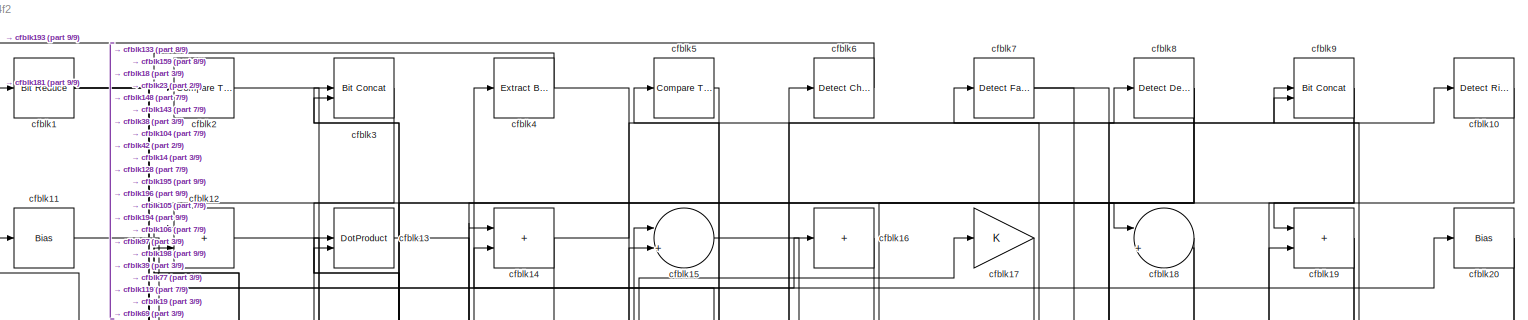
[diagram: root canvas - part 1/9, full width, top band]
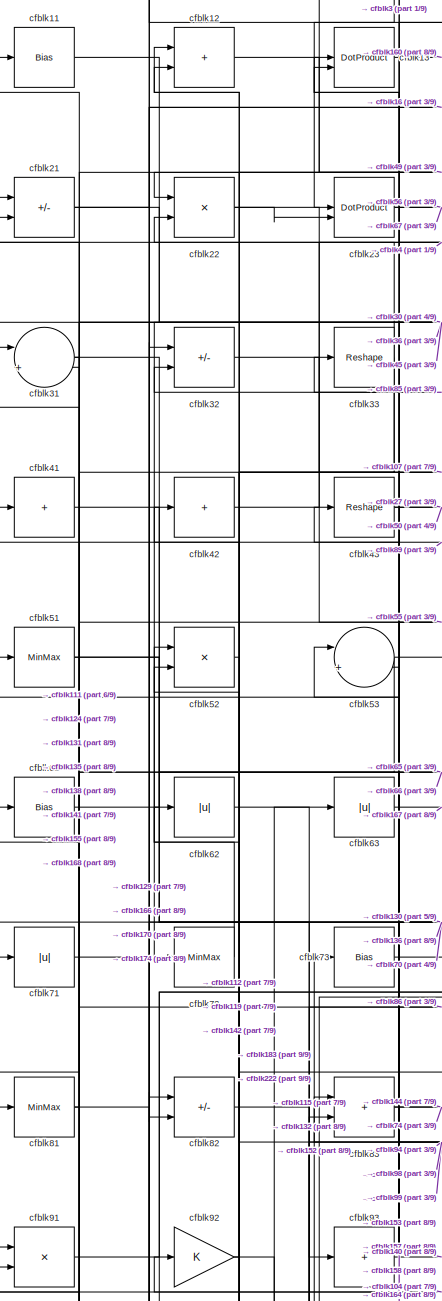
[diagram: root canvas - part 2/9, top left region]
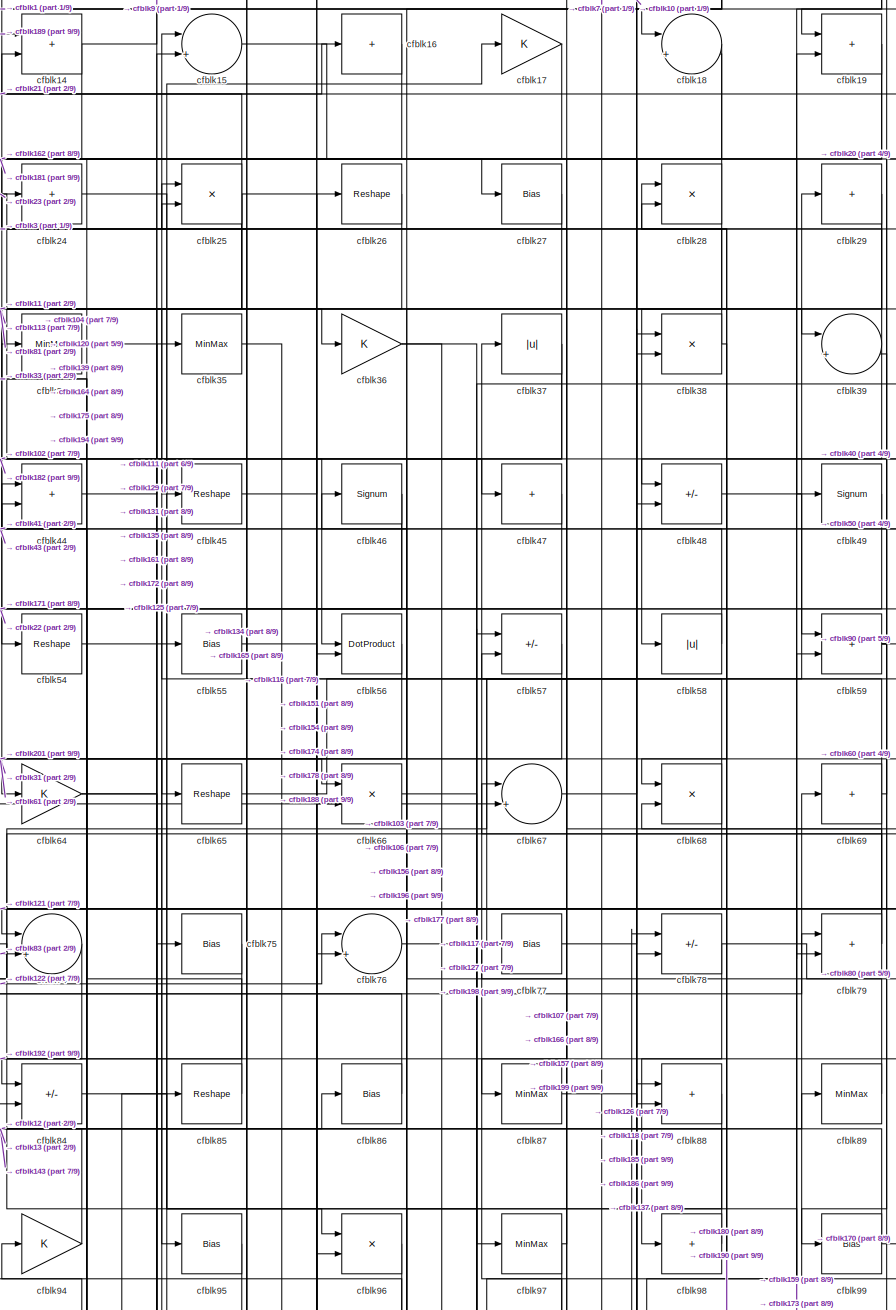
[diagram: root canvas - part 3/9, top center region]
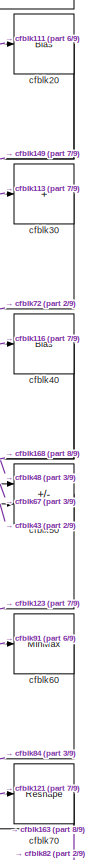
[diagram: root canvas - part 4/9, top right region]
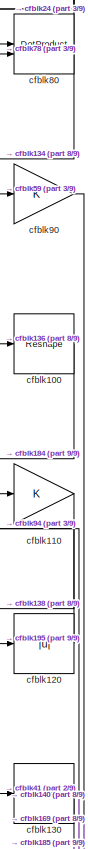
[diagram: root canvas - part 5/9, middle right region]
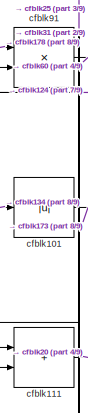
[diagram: root canvas - part 6/9, middle left region]
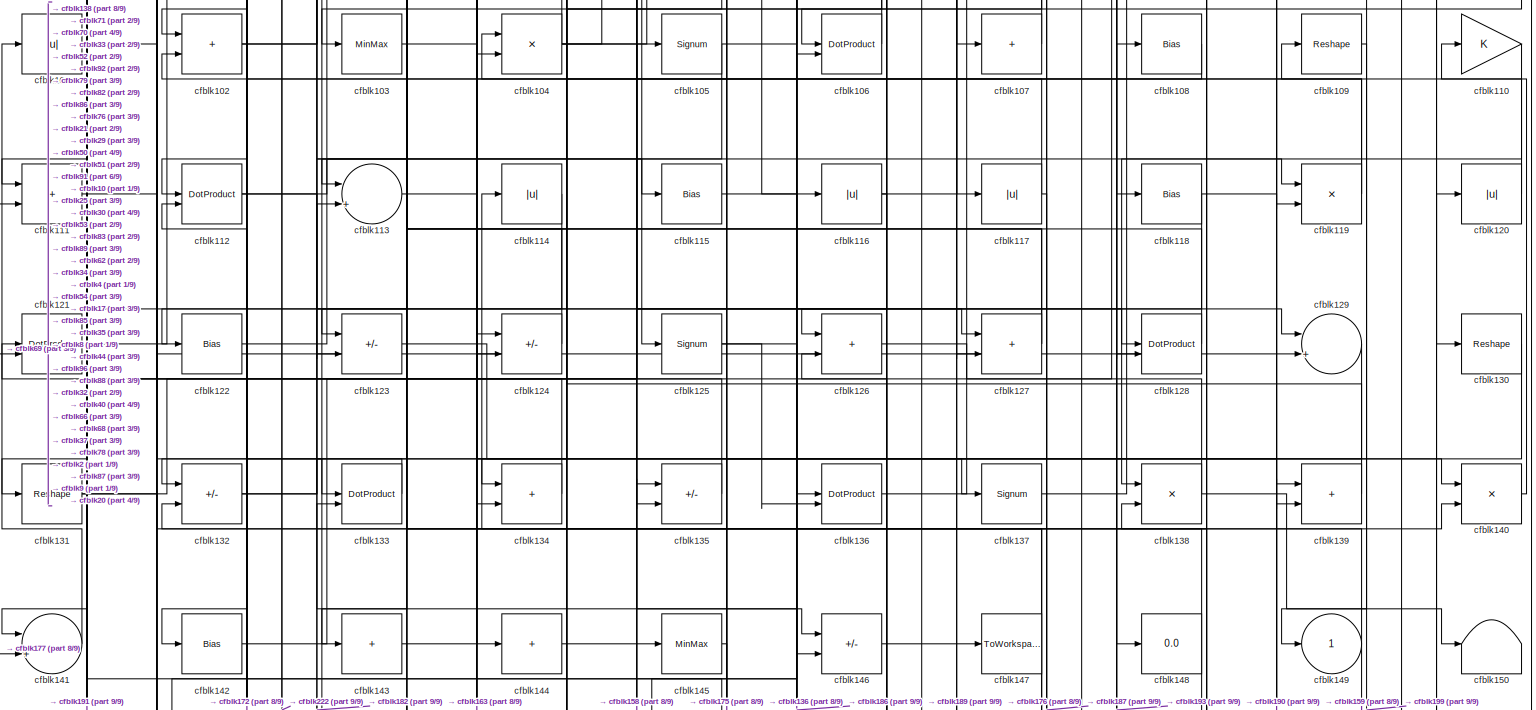
[diagram: root canvas - part 7/9, full width, middle band]
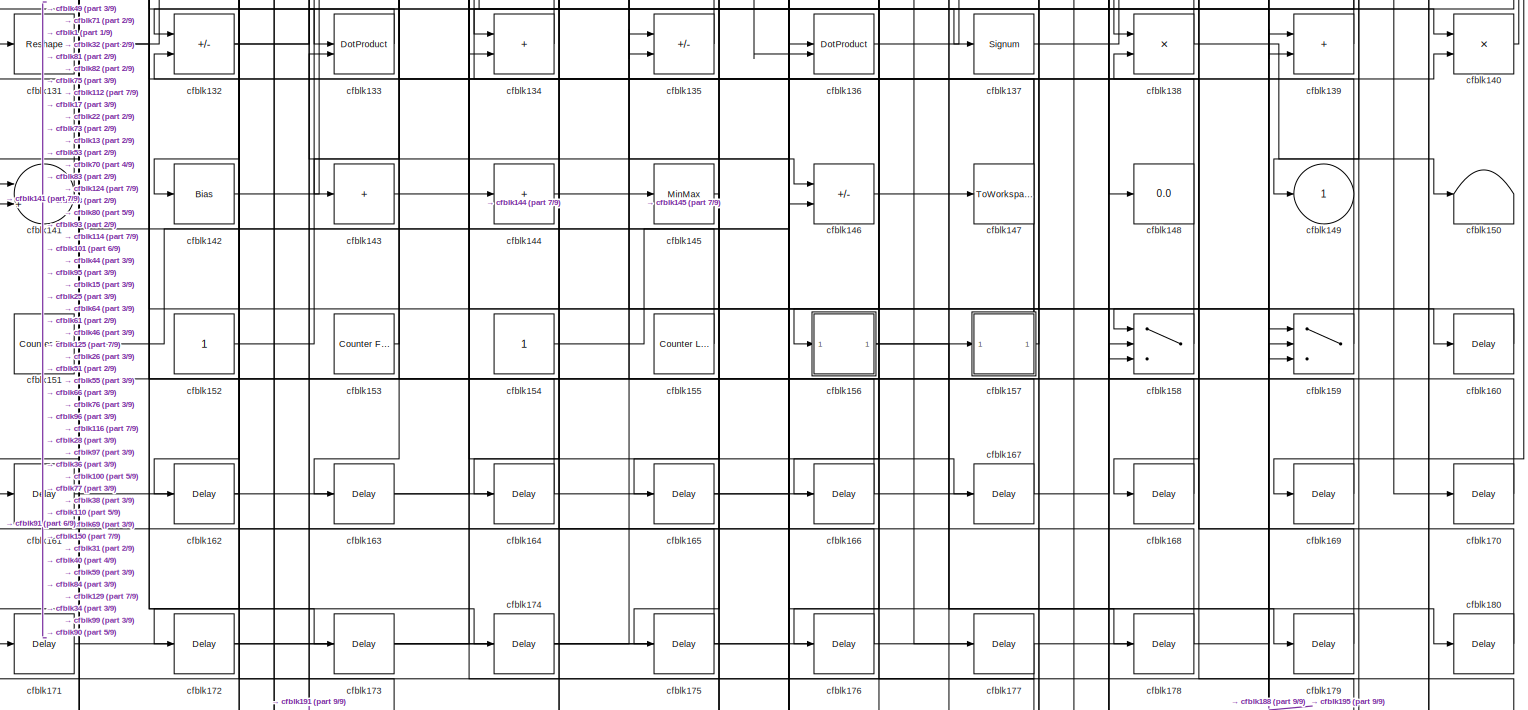
[diagram: root canvas - part 8/9, full width, bottom band]
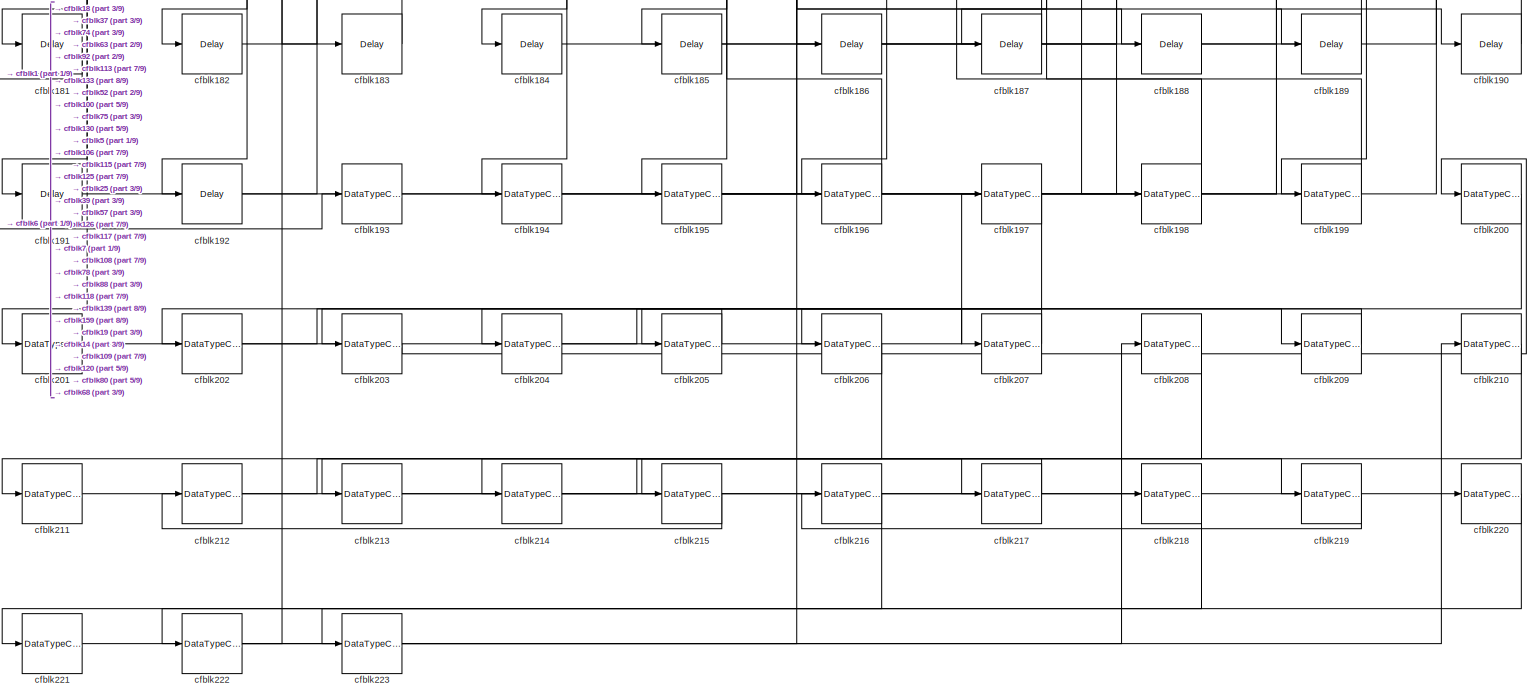
[diagram: root canvas - part 9/9, full width, bottom band]
MODEL slx_fe9a6d0374f2
KIND model
CONFIG AbsTol = auto
CONFIG EnableMultiTasking = off
CONFIG FixedStep = auto
CONFIG MaxStep = auto
CONFIG MinStep = auto
CONFIG RelTol = 1e-3
CONFIG SampleTimeConstraint = Unconstrained
CONFIG SolverName = VariableStepAuto
CONFIG StartTime = 0.0
CONFIG StopTime = 10.0
BLOCK [Reference] cfblk1  REF=hdlsllib/Logic and Bit
Operations/Bit Reduce
  SourceBlock = hdlsllib/Logic and Bit\nOperations/Bit Reduce
  SourceType = Bit Reduce
BLOCK [Reference] cfblk10  REF=hdlsllib/Logic and Bit
Operations/Detect Rise
Nonnegative
  SourceBlock = hdlsllib/Logic and Bit\nOperations/Detect Rise\nNonnegative
  SourceType = Detect Rise Nonnegative
BLOCK [Reshape] cfblk100
BLOCK [Abs] cfblk101
  SaturateOnIntegerOverflow = off
BLOCK [Sum] cfblk102
  IconShape = rectangular
BLOCK [MinMax] cfblk103
BLOCK [Product] cfblk104
  Inputs = */
  RndMeth = Zero
  SaturateOnIntegerOverflow = on
BLOCK [Signum] cfblk105
BLOCK [DotProduct] cfblk106
  OutDataTypeStr = Inherit: Inherit via internal rule
BLOCK [Sum] cfblk107
  IconShape = rectangular
  Inputs = +
BLOCK [Bias] cfblk108
  Bias = 0.0
  SaturateOnIntegerOverflow = off
BLOCK [Reshape] cfblk109
BLOCK [Bias] cfblk11
  Bias = 0.0
  SaturateOnIntegerOverflow = off
BLOCK [Gain] cfblk110
BLOCK [Sum] cfblk111
  IconShape = rectangular
BLOCK [DotProduct] cfblk112
  OutDataTypeStr = Inherit: Inherit via internal rule
BLOCK [Sum] cfblk113
  Inputs = |++
BLOCK [Abs] cfblk114
  SaturateOnIntegerOverflow = off
BLOCK [Bias] cfblk115
  Bias = 0.0
  SaturateOnIntegerOverflow = off
BLOCK [Abs] cfblk116
  SaturateOnIntegerOverflow = off
BLOCK [Abs] cfblk117
  SaturateOnIntegerOverflow = off
BLOCK [Bias] cfblk118
  Bias = 0.0
  SaturateOnIntegerOverflow = off
BLOCK [Product] cfblk119
  Inputs = */
  RndMeth = Zero
  SaturateOnIntegerOverflow = on
BLOCK [Sum] cfblk12
  IconShape = rectangular
BLOCK [Abs] cfblk120
  SaturateOnIntegerOverflow = off
BLOCK [DotProduct] cfblk121
  OutDataTypeStr = Inherit: Inherit via internal rule
BLOCK [Bias] cfblk122
  Bias = 0.0
  SaturateOnIntegerOverflow = off
BLOCK [Sum] cfblk123
  IconShape = rectangular
  Inputs = +-
BLOCK [Sum] cfblk124
  IconShape = rectangular
  Inputs = +-
BLOCK [Signum] cfblk125
BLOCK [Sum] cfblk126
  IconShape = rectangular
BLOCK [Sum] cfblk127
  IconShape = rectangular
BLOCK [DotProduct] cfblk128
  OutDataTypeStr = Inherit: Inherit via internal rule
BLOCK [Sum] cfblk129
  Inputs = |++
BLOCK [DotProduct] cfblk13
  OutDataTypeStr = Inherit: Inherit via internal rule
BLOCK [Reshape] cfblk130
BLOCK [Reshape] cfblk131
BLOCK [Sum] cfblk132
  IconShape = rectangular
  Inputs = +-
BLOCK [DotProduct] cfblk133
  OutDataTypeStr = Inherit: Inherit via internal rule
BLOCK [Sum] cfblk134
  IconShape = rectangular
BLOCK [Sum] cfblk135
  IconShape = rectangular
  Inputs = +-
BLOCK [DotProduct] cfblk136
  OutDataTypeStr = Inherit: Inherit via internal rule
BLOCK [Signum] cfblk137
BLOCK [Product] cfblk138
  Inputs = */
  RndMeth = Zero
  SaturateOnIntegerOverflow = on
BLOCK [Sum] cfblk139
  IconShape = rectangular
BLOCK [Sum] cfblk14
  IconShape = rectangular
BLOCK [Product] cfblk140
  Inputs = */
  RndMeth = Zero
  SaturateOnIntegerOverflow = on
BLOCK [Sum] cfblk141
  Inputs = |++
BLOCK [Bias] cfblk142
  Bias = 0.0
  SaturateOnIntegerOverflow = off
BLOCK [Sum] cfblk143
  IconShape = rectangular
  Inputs = +
BLOCK [Sum] cfblk144
  IconShape = rectangular
  Inputs = +
BLOCK [MinMax] cfblk145
BLOCK [Sum] cfblk146
  IconShape = rectangular
  Inputs = +-
BLOCK [ToWorkspace] cfblk147
  MaxDataPoints = inf
  SampleTime = -1
  SaveFormat = Timeseries
  VariableName = simout
BLOCK [Display] cfblk148
  Decimation = 1
BLOCK [Outport] cfblk149
  VectorParamsAs1DForOutWhenUnconnected = off
BLOCK [Sum] cfblk15
  Inputs = |++
BLOCK [Terminator] cfblk150
BLOCK [Reference] cfblk151  REF=hdlsllib/Sources/Counter
Free-Running
  SourceBlock = hdlsllib/Sources/Counter\nFree-Running
  SourceType = Counter Free-Running
BLOCK [Constant] cfblk152
  SampleTime = -1
BLOCK [Reference] cfblk153  REF=hdlsllib/Sources/Counter
Free-Running
  SourceBlock = hdlsllib/Sources/Counter\nFree-Running
  SourceType = Counter Free-Running
BLOCK [Constant] cfblk154
  SampleTime = -1
BLOCK [Reference] cfblk155  REF=hdlsllib/Sources/Counter
Limited
  SourceBlock = hdlsllib/Sources/Counter\nLimited
  SourceType = Counter Limited
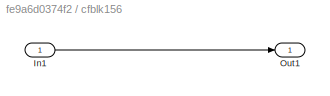
BLOCK [SubSystem] cfblk156
  LibrarySourceBlock = hdlsllib/Ports &\nSubsystems/Subsystem
BLOCK [Inport] cfblk156/In1
BLOCK [Outport] cfblk156/Out1
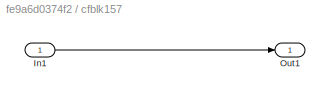
BLOCK [SubSystem] cfblk157
  LibrarySourceBlock = hdlsllib/Ports &\nSubsystems/Subsystem
BLOCK [Inport] cfblk157/In1
BLOCK [Outport] cfblk157/Out1
BLOCK [Switch] cfblk158
  InputSameDT = off
  SaturateOnIntegerOverflow = off
BLOCK [Switch] cfblk159
  InputSameDT = off
  SaturateOnIntegerOverflow = off
BLOCK [Sum] cfblk16
  IconShape = rectangular
  Inputs = +
BLOCK [Delay] cfblk160
  InputPortMap = u0
  SampleTime = 1
BLOCK [Delay] cfblk161
  InputPortMap = u0
  SampleTime = 1
BLOCK [Delay] cfblk162
  InputPortMap = u0
  SampleTime = 1
BLOCK [Delay] cfblk163
  InputPortMap = u0
  SampleTime = 1
BLOCK [Delay] cfblk164
  InputPortMap = u0
  SampleTime = 1
BLOCK [Delay] cfblk165
  InputPortMap = u0
  SampleTime = 1
BLOCK [Delay] cfblk166
  InputPortMap = u0
  SampleTime = 1
BLOCK [Delay] cfblk167
  InputPortMap = u0
  SampleTime = 1
BLOCK [Delay] cfblk168
  InputPortMap = u0
  SampleTime = 1
BLOCK [Delay] cfblk169
  InputPortMap = u0
  SampleTime = 1
BLOCK [Gain] cfblk17
BLOCK [Delay] cfblk170
  InputPortMap = u0
  SampleTime = 1
BLOCK [Delay] cfblk171
  InputPortMap = u0
  SampleTime = 1
BLOCK [Delay] cfblk172
  InputPortMap = u0
  SampleTime = 1
BLOCK [Delay] cfblk173
  InputPortMap = u0
  SampleTime = 1
BLOCK [Delay] cfblk174
  InputPortMap = u0
  SampleTime = 1
BLOCK [Delay] cfblk175
  InputPortMap = u0
  SampleTime = 1
BLOCK [Delay] cfblk176
  InputPortMap = u0
  SampleTime = 1
BLOCK [Delay] cfblk177
  InputPortMap = u0
  SampleTime = 1
BLOCK [Delay] cfblk178
  InputPortMap = u0
  SampleTime = 1
BLOCK [Delay] cfblk179
  InputPortMap = u0
  SampleTime = 1
BLOCK [Sum] cfblk18
  Inputs = |++
BLOCK [Delay] cfblk180
  InputPortMap = u0
  SampleTime = 1
BLOCK [Delay] cfblk181
  InputPortMap = u0
  SampleTime = 1
BLOCK [Delay] cfblk182
  InputPortMap = u0
  SampleTime = 1
BLOCK [Delay] cfblk183
  InputPortMap = u0
  SampleTime = 1
BLOCK [Delay] cfblk184
  InputPortMap = u0
  SampleTime = 1
BLOCK [Delay] cfblk185
  InputPortMap = u0
  SampleTime = 1
BLOCK [Delay] cfblk186
  InputPortMap = u0
  SampleTime = 1
BLOCK [Delay] cfblk187
  InputPortMap = u0
  SampleTime = 1
BLOCK [Delay] cfblk188
  InputPortMap = u0
  SampleTime = 1
BLOCK [Delay] cfblk189
  InputPortMap = u0
  SampleTime = 1
BLOCK [Sum] cfblk19
  IconShape = rectangular
BLOCK [Delay] cfblk190
  InputPortMap = u0
  SampleTime = 1
BLOCK [Delay] cfblk191
  InputPortMap = u0
  SampleTime = 1
BLOCK [Delay] cfblk192
  InputPortMap = u0
  SampleTime = 1
BLOCK [DataTypeConversion] cfblk193
  OutDataTypeStr = uint8
  RndMeth = Floor
  SaturateOnIntegerOverflow = off
BLOCK [DataTypeConversion] cfblk194
  OutDataTypeStr = uint8
  RndMeth = Floor
  SaturateOnIntegerOverflow = off
BLOCK [DataTypeConversion] cfblk195
  RndMeth = Floor
  SaturateOnIntegerOverflow = off
BLOCK [DataTypeConversion] cfblk196
  OutDataTypeStr = uint8
  RndMeth = Floor
  SaturateOnIntegerOverflow = off
BLOCK [DataTypeConversion] cfblk197
  RndMeth = Floor
  SaturateOnIntegerOverflow = off
BLOCK [DataTypeConversion] cfblk198
  OutDataTypeStr = uint8
  RndMeth = Floor
  SaturateOnIntegerOverflow = off
BLOCK [DataTypeConversion] cfblk199
  OutDataTypeStr = uint8
  RndMeth = Floor
  SaturateOnIntegerOverflow = off
BLOCK [Reference] cfblk2  REF=hdlsllib/Logic and Bit
Operations/Compare
To Zero
  SourceBlock = hdlsllib/Logic and Bit\nOperations/Compare\nTo Zero
  SourceType = Compare To Zero
BLOCK [Bias] cfblk20
  Bias = 0.0
  SaturateOnIntegerOverflow = off
BLOCK [DataTypeConversion] cfblk200
  RndMeth = Floor
  SaturateOnIntegerOverflow = off
BLOCK [DataTypeConversion] cfblk201
  OutDataTypeStr = uint8
  RndMeth = Floor
  SaturateOnIntegerOverflow = off
BLOCK [DataTypeConversion] cfblk202
  RndMeth = Floor
  SaturateOnIntegerOverflow = off
BLOCK [DataTypeConversion] cfblk203
  OutDataTypeStr = uint8
  RndMeth = Floor
  SaturateOnIntegerOverflow = off
BLOCK [DataTypeConversion] cfblk204
  RndMeth = Floor
  SaturateOnIntegerOverflow = off
BLOCK [DataTypeConversion] cfblk205
  OutDataTypeStr = uint8
  RndMeth = Floor
  SaturateOnIntegerOverflow = off
BLOCK [DataTypeConversion] cfblk206
  RndMeth = Floor
  SaturateOnIntegerOverflow = off
BLOCK [DataTypeConversion] cfblk207
  OutDataTypeStr = uint8
  RndMeth = Floor
  SaturateOnIntegerOverflow = off
BLOCK [DataTypeConversion] cfblk208
  RndMeth = Floor
  SaturateOnIntegerOverflow = off
BLOCK [DataTypeConversion] cfblk209
  OutDataTypeStr = uint8
  RndMeth = Floor
  SaturateOnIntegerOverflow = off
BLOCK [Sum] cfblk21
  IconShape = rectangular
  Inputs = +-
BLOCK [DataTypeConversion] cfblk210
  RndMeth = Floor
  SaturateOnIntegerOverflow = off
BLOCK [DataTypeConversion] cfblk211
  OutDataTypeStr = uint8
  RndMeth = Floor
  SaturateOnIntegerOverflow = off
BLOCK [DataTypeConversion] cfblk212
  RndMeth = Floor
  SaturateOnIntegerOverflow = off
BLOCK [DataTypeConversion] cfblk213
  OutDataTypeStr = uint8
  RndMeth = Floor
  SaturateOnIntegerOverflow = off
BLOCK [DataTypeConversion] cfblk214
  RndMeth = Floor
  SaturateOnIntegerOverflow = off
BLOCK [DataTypeConversion] cfblk215
  OutDataTypeStr = uint8
  RndMeth = Floor
  SaturateOnIntegerOverflow = off
BLOCK [DataTypeConversion] cfblk216
  RndMeth = Floor
  SaturateOnIntegerOverflow = off
BLOCK [DataTypeConversion] cfblk217
  OutDataTypeStr = uint8
  RndMeth = Floor
  SaturateOnIntegerOverflow = off
BLOCK [DataTypeConversion] cfblk218
  RndMeth = Floor
  SaturateOnIntegerOverflow = off
BLOCK [DataTypeConversion] cfblk219
  OutDataTypeStr = uint8
  RndMeth = Floor
  SaturateOnIntegerOverflow = off
BLOCK [Product] cfblk22
  Inputs = */
  RndMeth = Zero
  SaturateOnIntegerOverflow = on
BLOCK [DataTypeConversion] cfblk220
  RndMeth = Floor
  SaturateOnIntegerOverflow = off
BLOCK [DataTypeConversion] cfblk221
  OutDataTypeStr = uint8
  RndMeth = Floor
  SaturateOnIntegerOverflow = off
BLOCK [DataTypeConversion] cfblk222
  RndMeth = Floor
  SaturateOnIntegerOverflow = off
BLOCK [DataTypeConversion] cfblk223
  OutDataTypeStr = uint8
  RndMeth = Floor
  SaturateOnIntegerOverflow = off
BLOCK [DotProduct] cfblk23
  OutDataTypeStr = Inherit: Inherit via internal rule
BLOCK [Sum] cfblk24
  IconShape = rectangular
  Inputs = +
BLOCK [Product] cfblk25
  Inputs = */
  RndMeth = Zero
  SaturateOnIntegerOverflow = on
BLOCK [Reshape] cfblk26
BLOCK [Bias] cfblk27
  Bias = 0.0
  SaturateOnIntegerOverflow = off
BLOCK [Product] cfblk28
  Inputs = */
  RndMeth = Zero
  SaturateOnIntegerOverflow = on
BLOCK [Sum] cfblk29
  IconShape = rectangular
  Inputs = +
BLOCK [Reference] cfblk3  REF=hdlsllib/Logic and Bit
Operations/Bit Concat
  SourceBlock = hdlsllib/Logic and Bit\nOperations/Bit Concat
  SourceType = Bit Concat
BLOCK [Sum] cfblk30
  IconShape = rectangular
  Inputs = +
BLOCK [Sum] cfblk31
  Inputs = |++
BLOCK [Sum] cfblk32
  IconShape = rectangular
  Inputs = +-
BLOCK [Reshape] cfblk33
BLOCK [MinMax] cfblk34
BLOCK [MinMax] cfblk35
BLOCK [Gain] cfblk36
BLOCK [Abs] cfblk37
  SaturateOnIntegerOverflow = off
BLOCK [Product] cfblk38
  Inputs = */
  RndMeth = Zero
  SaturateOnIntegerOverflow = on
BLOCK [Sum] cfblk39
  Inputs = |++
BLOCK [Reference] cfblk4  REF=simulink/Logic and Bit
Operations/Extract Bits
  LibrarySourceBlock = hdlsllib/Logic and Bit\nOperations/Extract Bits
  SourceBlock = simulink/Logic and Bit\nOperations/Extract Bits
  SourceType = Extract Bits
BLOCK [Bias] cfblk40
  Bias = 0.0
  SaturateOnIntegerOverflow = off
BLOCK [Sum] cfblk41
  IconShape = rectangular
  Inputs = +
BLOCK [Sum] cfblk42
  IconShape = rectangular
  Inputs = +
BLOCK [Reshape] cfblk43
BLOCK [Sum] cfblk44
  IconShape = rectangular
BLOCK [Reshape] cfblk45
BLOCK [Signum] cfblk46
BLOCK [Sum] cfblk47
  IconShape = rectangular
  Inputs = +
BLOCK [Sum] cfblk48
  IconShape = rectangular
  Inputs = +-
BLOCK [Signum] cfblk49
BLOCK [Reference] cfblk5  REF=hdlsllib/Logic and Bit
Operations/Compare
To Zero
  SourceBlock = hdlsllib/Logic and Bit\nOperations/Compare\nTo Zero
  SourceType = Compare To Zero
BLOCK [Sum] cfblk50
  IconShape = rectangular
  Inputs = +-
BLOCK [MinMax] cfblk51
BLOCK [Product] cfblk52
  Inputs = */
  RndMeth = Zero
  SaturateOnIntegerOverflow = on
BLOCK [Sum] cfblk53
  Inputs = |++
BLOCK [Reshape] cfblk54
BLOCK [Bias] cfblk55
  Bias = 0.0
  SaturateOnIntegerOverflow = off
BLOCK [DotProduct] cfblk56
  OutDataTypeStr = Inherit: Inherit via internal rule
BLOCK [Sum] cfblk57
  IconShape = rectangular
  Inputs = +-
BLOCK [Abs] cfblk58
  SaturateOnIntegerOverflow = off
BLOCK [Sum] cfblk59
  IconShape = rectangular
BLOCK [Reference] cfblk6  REF=simulink/Logic and Bit
Operations/Detect
Change
  LibrarySourceBlock = hdlsllib/Logic and Bit\nOperations/Detect\nChange
  SourceBlock = simulink/Logic and Bit\nOperations/Detect\nChange
  SourceType = Detect Change
BLOCK [MinMax] cfblk60
BLOCK [Bias] cfblk61
  Bias = 0.0
  SaturateOnIntegerOverflow = off
BLOCK [Abs] cfblk62
  SaturateOnIntegerOverflow = off
BLOCK [Abs] cfblk63
  SaturateOnIntegerOverflow = off
BLOCK [Gain] cfblk64
BLOCK [Reshape] cfblk65
BLOCK [Product] cfblk66
  Inputs = */
  RndMeth = Zero
  SaturateOnIntegerOverflow = on
BLOCK [Sum] cfblk67
  Inputs = |++
BLOCK [Product] cfblk68
  Inputs = */
  RndMeth = Zero
  SaturateOnIntegerOverflow = on
BLOCK [Sum] cfblk69
  IconShape = rectangular
  Inputs = +
BLOCK [Reference] cfblk7  REF=hdlsllib/Logic and Bit
Operations/Detect Fall
Nonpositive
  SourceBlock = hdlsllib/Logic and Bit\nOperations/Detect Fall\nNonpositive
  SourceType = Detect Fall Nonpositive
BLOCK [Reshape] cfblk70
BLOCK [Abs] cfblk71
  SaturateOnIntegerOverflow = off
BLOCK [MinMax] cfblk72
BLOCK [Bias] cfblk73
  Bias = 0.0
  SaturateOnIntegerOverflow = off
BLOCK [Sum] cfblk74
  Inputs = |++
BLOCK [Bias] cfblk75
  Bias = 0.0
  SaturateOnIntegerOverflow = off
BLOCK [Sum] cfblk76
  Inputs = |++
BLOCK [Bias] cfblk77
  Bias = 0.0
  SaturateOnIntegerOverflow = off
BLOCK [Sum] cfblk78
  IconShape = rectangular
  Inputs = +-
BLOCK [Sum] cfblk79
  IconShape = rectangular
BLOCK [Reference] cfblk8  REF=simulink/Logic and Bit
Operations/Detect
Decrease
  LibrarySourceBlock = hdlsllib/Logic and Bit\nOperations/Detect\nDecrease
  SourceBlock = simulink/Logic and Bit\nOperations/Detect\nDecrease
  SourceType = Detect Decrease
BLOCK [DotProduct] cfblk80
  OutDataTypeStr = Inherit: Inherit via internal rule
BLOCK [MinMax] cfblk81
BLOCK [Sum] cfblk82
  IconShape = rectangular
  Inputs = +-
BLOCK [Sum] cfblk83
  IconShape = rectangular
BLOCK [Sum] cfblk84
  IconShape = rectangular
  Inputs = +-
BLOCK [Reshape] cfblk85
BLOCK [Bias] cfblk86
  Bias = 0.0
  SaturateOnIntegerOverflow = off
BLOCK [MinMax] cfblk87
BLOCK [Sum] cfblk88
  IconShape = rectangular
BLOCK [MinMax] cfblk89
BLOCK [Reference] cfblk9  REF=hdlsllib/Logic and Bit
Operations/Bit Concat
  SourceBlock = hdlsllib/Logic and Bit\nOperations/Bit Concat
  SourceType = Bit Concat
BLOCK [Gain] cfblk90
BLOCK [Product] cfblk91
  Inputs = */
  RndMeth = Zero
  SaturateOnIntegerOverflow = on
BLOCK [Gain] cfblk92
BLOCK [Sum] cfblk93
  IconShape = rectangular
  Inputs = +
BLOCK [Gain] cfblk94
BLOCK [Bias] cfblk95
  Bias = 0.0
  SaturateOnIntegerOverflow = off
BLOCK [Product] cfblk96
  Inputs = */
  RndMeth = Zero
  SaturateOnIntegerOverflow = on
BLOCK [MinMax] cfblk97
BLOCK [Sum] cfblk98
  IconShape = rectangular
  Inputs = +
BLOCK [Bias] cfblk99
  Bias = 0.0
  SaturateOnIntegerOverflow = off
LINE cfblk100:1 -> cfblk184:1
LINE cfblk101:1 -> cfblk173:1
NET cfblk102:1 -> cfblk79:1, cfblk86:1
LINE cfblk103:1 -> cfblk25:2
NET cfblk104:1 -> cfblk146:1, cfblk17:1, cfblk62:1, cfblk85:1
NET cfblk105:1 -> cfblk123:2, cfblk8:1
LINE cfblk106:1 -> cfblk44:1
LINE cfblk107:1 -> cfblk37:1
LINE cfblk108:1 -> cfblk102:2
LINE cfblk109:1 -> cfblk199:1
LINE cfblk10:1 -> cfblk104:2
LINE cfblk110:1 -> cfblk138:1
LINE cfblk111:1 -> cfblk20:1
NET cfblk112:1 -> cfblk119:1, cfblk146:2
LINE cfblk113:1 -> cfblk30:1
LINE cfblk114:1 -> cfblk122:1
LINE cfblk115:1 -> cfblk186:1
NET cfblk116:1 -> cfblk176:1, cfblk40:1
NET cfblk117:1 -> cfblk104:1, cfblk187:1
NET cfblk118:1 -> cfblk190:1, cfblk191:1
NET cfblk119:1 -> cfblk109:1, cfblk92:1
LINE cfblk11:1 -> cfblk45:1
LINE cfblk120:1 -> cfblk94:1
LINE cfblk121:1 -> cfblk70:1
LINE cfblk122:1 -> cfblk76:1
LINE cfblk123:1 -> cfblk145:1
LINE cfblk124:1 -> cfblk91:2
NET cfblk125:1 -> cfblk136:2, cfblk189:1
LINE cfblk126:1 -> cfblk78:1
NET cfblk127:1 -> cfblk21:2, cfblk51:1
LINE cfblk128:1 -> cfblk32:2
LINE cfblk129:1 -> cfblk172:1
LINE cfblk12:1 -> cfblk49:1
LINE cfblk130:1 -> cfblk185:1
NET cfblk131:1 -> cfblk140:2, cfblk75:1
NET cfblk132:1 -> cfblk137:1, cfblk83:2
LINE cfblk133:1 -> cfblk132:1
LINE cfblk134:1 -> cfblk101:1
LINE cfblk135:1 -> cfblk61:1
LINE cfblk136:1 -> cfblk100:1
LINE cfblk137:1 -> cfblk69:1
NET cfblk138:1 -> cfblk150:1, cfblk31:2
LINE cfblk139:1 -> cfblk34:1
LINE cfblk13:1 -> cfblk160:1
LINE cfblk140:1 -> cfblk110:1
LINE cfblk141:1 -> cfblk121:1
LINE cfblk142:1 -> cfblk105:1
LINE cfblk143:1 -> cfblk89:1
LINE cfblk144:1 -> cfblk158:3
LINE cfblk145:1 -> cfblk175:1
LINE cfblk146:1 -> cfblk147:1
NET cfblk14:1 -> cfblk54:1, cfblk9:1
LINE cfblk151:1 -> cfblk26:1
LINE cfblk152:1 -> cfblk73:1
LINE cfblk153:1 -> cfblk83:1
LINE cfblk154:1 -> cfblk76:2
LINE cfblk155:1 -> cfblk71:1
LINE cfblk156/In1:1 -> cfblk156/Out1:1
NET cfblk156:1 -> cfblk179:1, cfblk180:1
LINE cfblk157/In1:1 -> cfblk157/Out1:1
NET cfblk157:1 -> cfblk13:2, cfblk22:2, cfblk77:1
LINE cfblk158:1 -> cfblk53:1
LINE cfblk159:1 -> cfblk114:1
LINE cfblk15:1 -> cfblk88:2
LINE cfblk160:1 -> cfblk158:1
LINE cfblk161:1 -> cfblk96:2
LINE cfblk162:1 -> cfblk132:2
LINE cfblk163:1 -> cfblk124:1
LINE cfblk164:1 -> cfblk53:2
LINE cfblk165:1 -> cfblk38:2
LINE cfblk166:1 -> cfblk32:1
LINE cfblk167:1 -> cfblk135:1
LINE cfblk168:1 -> cfblk31:1
LINE cfblk169:1 -> cfblk158:2
LINE cfblk16:1 -> cfblk22:1
LINE cfblk170:1 -> cfblk82:1
LINE cfblk171:1 -> cfblk84:2
LINE cfblk172:1 -> cfblk15:2
LINE cfblk173:1 -> cfblk59:2
LINE cfblk174:1 -> cfblk66:2
LINE cfblk175:1 -> cfblk44:2
LINE cfblk176:1 -> cfblk112:2
LINE cfblk177:1 -> cfblk141:2
LINE cfblk178:1 -> cfblk91:1
LINE cfblk179:1 -> cfblk138:2
LINE cfblk17:1 -> cfblk162:1
LINE cfblk180:1 -> cfblk28:2
LINE cfblk181:1 -> cfblk1:1
LINE cfblk182:1 -> cfblk113:2
LINE cfblk183:1 -> cfblk52:2
LINE cfblk184:1 -> cfblk80:1
LINE cfblk185:1 -> cfblk88:1
LINE cfblk186:1 -> cfblk78:2
LINE cfblk187:1 -> cfblk126:2
LINE cfblk188:1 -> cfblk159:2
LINE cfblk189:1 -> cfblk14:1
LINE cfblk18:1 -> cfblk181:1
LINE cfblk190:1 -> cfblk68:2
LINE cfblk191:1 -> cfblk133:2
LINE cfblk192:1 -> cfblk19:2
LINE cfblk193:1 -> cfblk108:1
LINE cfblk194:1 -> cfblk6:1
NET cfblk195:1 -> cfblk120:1, cfblk139:1
LINE cfblk196:1 -> cfblk5:1
LINE cfblk197:1 -> cfblk203:1
LINE cfblk198:1 -> cfblk57:1
LINE cfblk199:1 -> cfblk57:2
NET cfblk19:1 -> cfblk74:1, cfblk87:1
NET cfblk1:1 -> cfblk133:1, cfblk159:3, cfblk18:1
LINE cfblk200:1 -> cfblk205:1
LINE cfblk201:1 -> cfblk197:1
LINE cfblk202:1 -> cfblk207:1
LINE cfblk203:1 -> cfblk200:1
LINE cfblk204:1 -> cfblk209:1
LINE cfblk205:1 -> cfblk202:1
LINE cfblk206:1 -> cfblk211:1
LINE cfblk207:1 -> cfblk204:1
LINE cfblk208:1 -> cfblk213:1
LINE cfblk209:1 -> cfblk206:1
NET cfblk20:1 -> cfblk149:1, cfblk48:2
LINE cfblk210:1 -> cfblk215:1
LINE cfblk211:1 -> cfblk208:1
LINE cfblk212:1 -> cfblk217:1
LINE cfblk213:1 -> cfblk210:1
LINE cfblk214:1 -> cfblk219:1
LINE cfblk215:1 -> cfblk212:1
LINE cfblk216:1 -> cfblk221:1
LINE cfblk217:1 -> cfblk214:1
LINE cfblk218:1 -> cfblk223:1
LINE cfblk219:1 -> cfblk216:1
NET cfblk21:1 -> cfblk16:1, cfblk36:1
LINE cfblk220:1 -> cfblk222:1
LINE cfblk221:1 -> cfblk218:1
NET cfblk222:1 -> cfblk106:2, cfblk63:1
LINE cfblk223:1 -> cfblk220:1
NET cfblk22:1 -> cfblk23:2, cfblk55:1
NET cfblk23:1 -> cfblk56:1, cfblk67:2
LINE cfblk24:1 -> cfblk96:1
NET cfblk25:1 -> cfblk111:2, cfblk135:2, cfblk14:2, cfblk161:1, cfblk188:1
LINE cfblk26:1 -> cfblk64:1
LINE cfblk27:1 -> cfblk81:1
NET cfblk28:1 -> cfblk156:1, cfblk18:2
NET cfblk29:1 -> cfblk113:1, cfblk58:1
LINE cfblk2:1 -> cfblk148:1
LINE cfblk30:1 -> cfblk72:1
NET cfblk31:1 -> cfblk111:1, cfblk65:1
LINE cfblk32:1 -> cfblk107:1
NET cfblk33:1 -> cfblk12:2, cfblk141:1, cfblk142:1
LINE cfblk34:1 -> cfblk129:1
LINE cfblk35:1 -> cfblk116:1
NET cfblk36:1 -> cfblk177:1, cfblk97:1
NET cfblk37:1 -> cfblk102:1, cfblk182:1
NET cfblk38:1 -> cfblk3:2, cfblk68:1
NET cfblk39:1 -> cfblk196:1, cfblk3:1
LINE cfblk3:1 -> cfblk23:1
NET cfblk40:1 -> cfblk168:1, cfblk48:1
LINE cfblk41:1 -> cfblk130:1
LINE cfblk42:1 -> cfblk4:1
NET cfblk43:1 -> cfblk27:1, cfblk50:2
LINE cfblk44:1 -> cfblk35:1
LINE cfblk45:1 -> cfblk47:1
NET cfblk46:1 -> cfblk164:1, cfblk165:1
LINE cfblk47:1 -> cfblk56:2
LINE cfblk48:1 -> cfblk59:1
LINE cfblk49:1 -> cfblk171:1
NET cfblk4:1 -> cfblk128:1, cfblk2:1
LINE cfblk50:1 -> cfblk123:1
NET cfblk51:1 -> cfblk136:1, cfblk93:1
LINE cfblk52:1 -> cfblk112:1
NET cfblk53:1 -> cfblk124:2, cfblk131:1
LINE cfblk54:1 -> cfblk125:1
LINE cfblk55:1 -> cfblk178:1
LINE cfblk56:1 -> cfblk95:1
LINE cfblk57:1 -> cfblk201:1
LINE cfblk58:1 -> cfblk46:1
NET cfblk59:1 -> cfblk39:2, cfblk90:1, cfblk99:1
LINE cfblk5:1 -> cfblk195:1
LINE cfblk60:1 -> cfblk84:1
LINE cfblk61:1 -> cfblk66:1
LINE cfblk62:1 -> cfblk115:1
LINE cfblk63:1 -> cfblk167:1
NET cfblk64:1 -> cfblk139:2, cfblk79:2
LINE cfblk65:1 -> cfblk29:1
LINE cfblk66:1 -> cfblk117:1
LINE cfblk67:1 -> cfblk50:1
NET cfblk68:1 -> cfblk127:2, cfblk15:1
NET cfblk69:1 -> cfblk121:2, cfblk25:1, cfblk9:2
LINE cfblk6:1 -> cfblk193:1
NET cfblk70:1 -> cfblk163:1, cfblk82:2
LINE cfblk71:1 -> cfblk129:2
LINE cfblk72:1 -> cfblk52:1
LINE cfblk73:1 -> cfblk157:1
LINE cfblk74:1 -> cfblk192:1
LINE cfblk75:1 -> cfblk194:1
LINE cfblk76:1 -> cfblk38:1
LINE cfblk77:1 -> cfblk10:1
NET cfblk78:1 -> cfblk80:2, cfblk98:1
NET cfblk79:1 -> cfblk28:1, cfblk67:1
NET cfblk7:1 -> cfblk198:1, cfblk39:1
NET cfblk80:1 -> cfblk134:2, cfblk24:1
NET cfblk81:1 -> cfblk11:1, cfblk174:1
LINE cfblk82:1 -> cfblk127:1
NET cfblk83:1 -> cfblk144:1, cfblk74:2
LINE cfblk84:1 -> cfblk159:1
LINE cfblk85:1 -> cfblk33:1
LINE cfblk86:1 -> cfblk21:1
LINE cfblk87:1 -> cfblk118:1
LINE cfblk88:1 -> cfblk126:1
LINE cfblk89:1 -> cfblk41:1
NET cfblk8:1 -> cfblk106:1, cfblk128:2, cfblk143:1
LINE cfblk90:1 -> cfblk169:1
LINE cfblk91:1 -> cfblk60:1
NET cfblk92:1 -> cfblk183:1, cfblk42:1
LINE cfblk93:1 -> cfblk140:1
LINE cfblk94:1 -> cfblk43:1
LINE cfblk95:1 -> cfblk134:1
LINE cfblk96:1 -> cfblk103:1
NET cfblk97:1 -> cfblk166:1, cfblk7:1
LINE cfblk98:1 -> cfblk13:1
NET cfblk99:1 -> cfblk12:1, cfblk170:1
NET cfblk9:1 -> cfblk119:2, cfblk19:1
note: NET lines group one-source signal fan-out (src -> all destinations, sorted); 1:1 wires keep LINE
